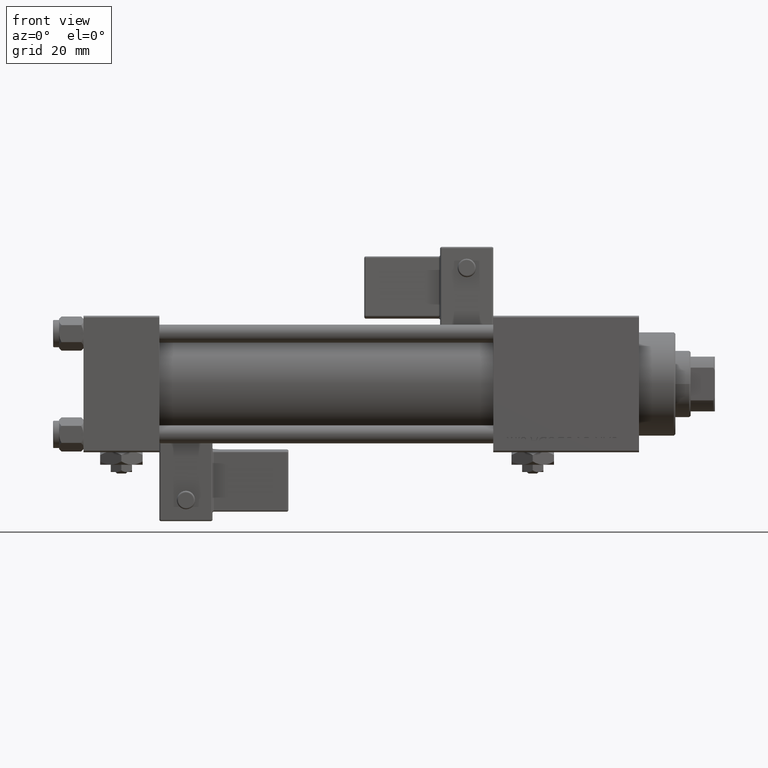
[diagram: clean part render]
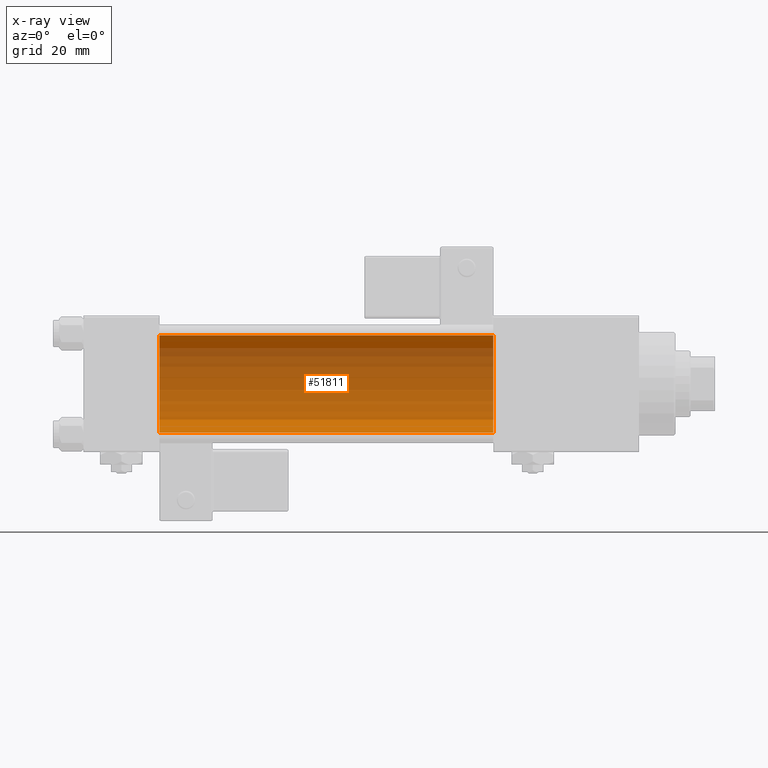
[diagram: x-ray — body ghosted, one internal face saturated and labeled with its STEP entity id]
A machine part, front view, then the same camera in x-ray: the body is ghosted and one INTERNAL B-rep face — a face not visible from any outside direction — is saturated and labeled: STEP entity #51811.
In plain terms, the highlighted cylindrical surface (partial cylindrical patch) has radius 16 mm, axis along (-1, -0, -0).
Its self-contained STEP definition (entity closure, byte-faithful):
#362 = FACE_OUTER_BOUND ( 'NONE', #6078, .T. ) ;
#1825 = VERTEX_POINT ( 'NONE', #32221 ) ;
#3470 = CARTESIAN_POINT ( 'NONE',  ( 135.0000000000000000, -2.602085213965210642E-15, 0.000000000000000000 ) ) ;
#3705 = ORIENTED_EDGE ( 'NONE', *, *, #53910, .F. ) ;
#6078 = EDGE_LOOP ( 'NONE', ( #3705, #49319, #28221, #26589 ) ) ;
#6217 = EDGE_CURVE ( 'NONE', #44525, #42811, #31287, .T. ) ;
#7005 = VECTOR ( 'NONE', #38469, 1000.000000000000000 ) ;
#8516 = DIRECTION ( 'NONE',  ( 1.000000000000000000, 0.000000000000000000, 0.000000000000000000 ) ) ;
#9634 = AXIS2_PLACEMENT_3D ( 'NONE', #22080, #17554, #47177 ) ;
#9827 = CARTESIAN_POINT ( 'NONE',  ( 25.00000000000000000, -2.602085213965210642E-15, 0.000000000000000000 ) ) ;
#9834 = CARTESIAN_POINT ( 'NONE',  ( 135.0000000000000000, -2.602085213965210642E-15, 16.00000000000000000 ) ) ;
#11154 = CARTESIAN_POINT ( 'NONE',  ( 135.0000000000000000, -6.426503353294456087E-16, -16.00000000000000000 ) ) ;
#12795 = LINE ( 'NONE', #54853, #7005 ) ;
#14252 = VECTOR ( 'NONE', #17728, 1000.000000000000000 ) ;
#17554 = DIRECTION ( 'NONE',  ( -1.000000000000000000, -0.000000000000000000, -0.000000000000000000 ) ) ;
#17728 = DIRECTION ( 'NONE',  ( -1.000000000000000000, -0.000000000000000000, -0.000000000000000000 ) ) ;
#18820 = VERTEX_POINT ( 'NONE', #11154 ) ;
#20689 = DIRECTION ( 'NONE',  ( 0.000000000000000000, 0.000000000000000000, -1.000000000000000000 ) ) ;
#22080 = CARTESIAN_POINT ( 'NONE',  ( 135.0000000000000000, -2.602085213965210642E-15, 0.000000000000000000 ) ) ;
#24857 = CARTESIAN_POINT ( 'NONE',  ( 135.0000000000000000, -2.602085213965210642E-15, 16.00000000000000000 ) ) ;
#26185 = AXIS2_PLACEMENT_3D ( 'NONE', #3470, #8516, #20689 ) ;
#26589 = ORIENTED_EDGE ( 'NONE', *, *, #53449, .F. ) ;
#28221 = ORIENTED_EDGE ( 'NONE', *, *, #6217, .T. ) ;
#29394 = EDGE_CURVE ( 'NONE', #18820, #44525, #50516, .T. ) ;
#31287 = LINE ( 'NONE', #9834, #14252 ) ;
#32221 = CARTESIAN_POINT ( 'NONE',  ( 25.00000000000000000, -6.426503353294456087E-16, -16.00000000000000000 ) ) ;
#33966 = CIRCLE ( 'NONE', #48425, 16.00000000000000000 ) ;
#38469 = DIRECTION ( 'NONE',  ( -1.000000000000000000, -0.000000000000000000, -0.000000000000000000 ) ) ;
#42811 = VERTEX_POINT ( 'NONE', #47260 ) ;
#44259 = DIRECTION ( 'NONE',  ( 0.000000000000000000, 0.000000000000000000, -1.000000000000000000 ) ) ;
#44525 = VERTEX_POINT ( 'NONE', #24857 ) ;
#47177 = DIRECTION ( 'NONE',  ( 0.000000000000000000, 0.000000000000000000, 1.000000000000000000 ) ) ;
#47260 = CARTESIAN_POINT ( 'NONE',  ( 25.00000000000000000, -2.602085213965210642E-15, 16.00000000000000000 ) ) ;
#47460 = CYLINDRICAL_SURFACE ( 'NONE', #9634, 16.00000000000000000 ) ;
#48425 = AXIS2_PLACEMENT_3D ( 'NONE', #9827, #52133, #44259 ) ;
#49319 = ORIENTED_EDGE ( 'NONE', *, *, #29394, .T. ) ;
#50516 = CIRCLE ( 'NONE', #26185, 16.00000000000000000 ) ;
#51811 = ADVANCED_FACE ( 'NONE', ( #362 ), #47460, .F. ) ;
#52133 = DIRECTION ( 'NONE',  ( 1.000000000000000000, 0.000000000000000000, 0.000000000000000000 ) ) ;
#53449 = EDGE_CURVE ( 'NONE', #1825, #42811, #33966, .T. ) ;
#53910 = EDGE_CURVE ( 'NONE', #18820, #1825, #12795, .T. ) ;
#54853 = CARTESIAN_POINT ( 'NONE',  ( 135.0000000000000000, -6.426503353294456087E-16, -16.00000000000000000 ) ) ;